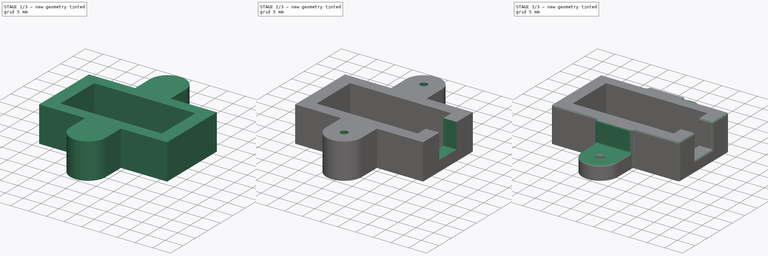
[diagram: build sequence overview — one tinted view per stage of 3, left to right]
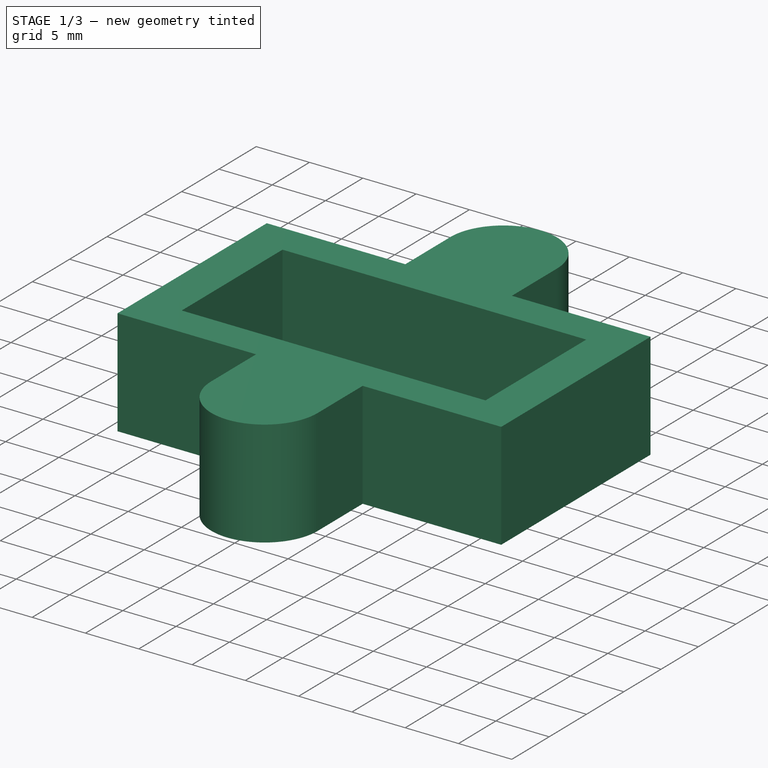
[diagram: stage 1 of 3 — iso view after this stage's code; geometry added in this stage tinted green]
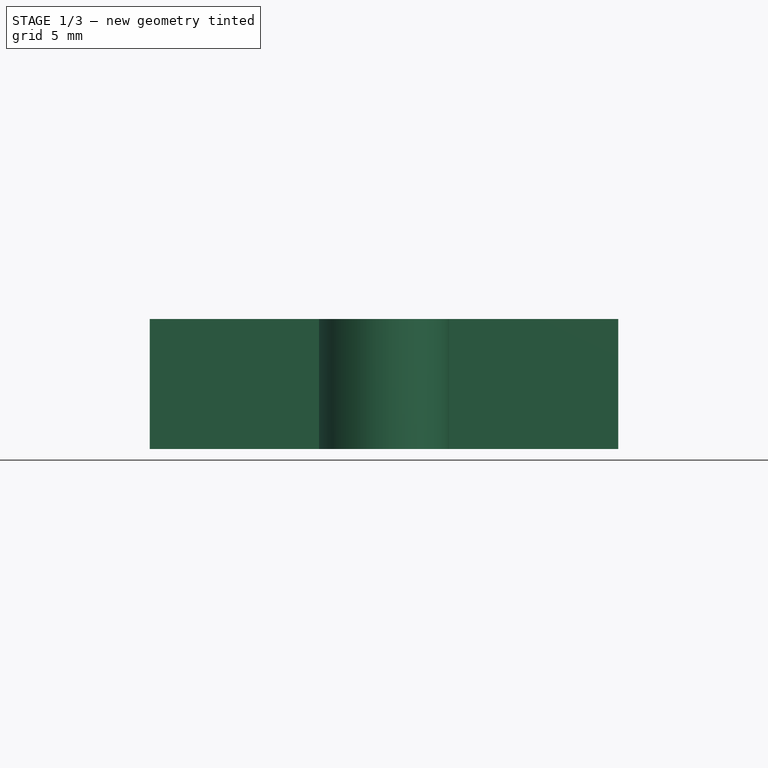
[diagram: stage 1 of 3 — front view after this stage's code; geometry added in this stage tinted green]
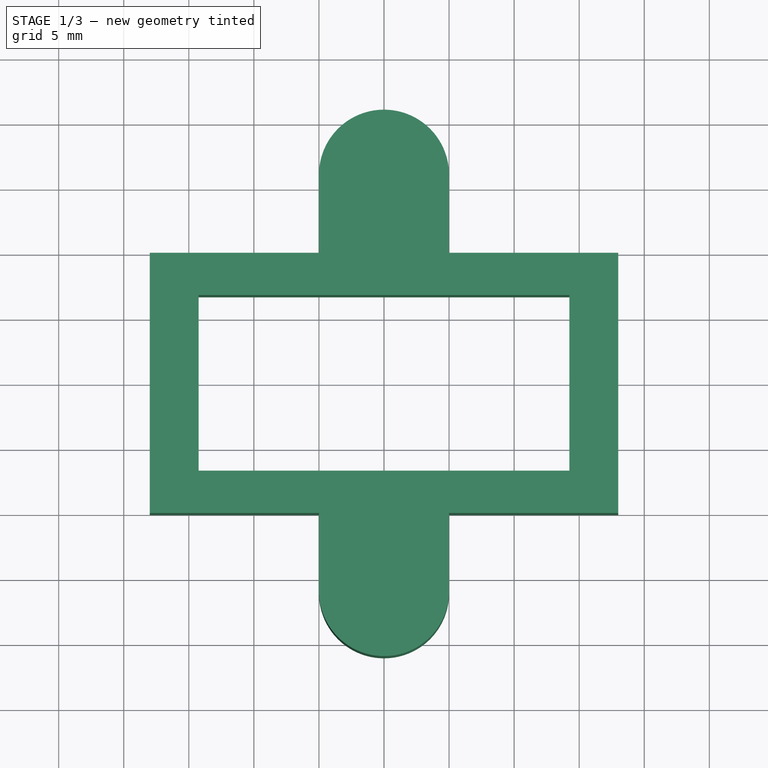
[diagram: stage 1 of 3 — top view after this stage's code; geometry added in this stage tinted green]
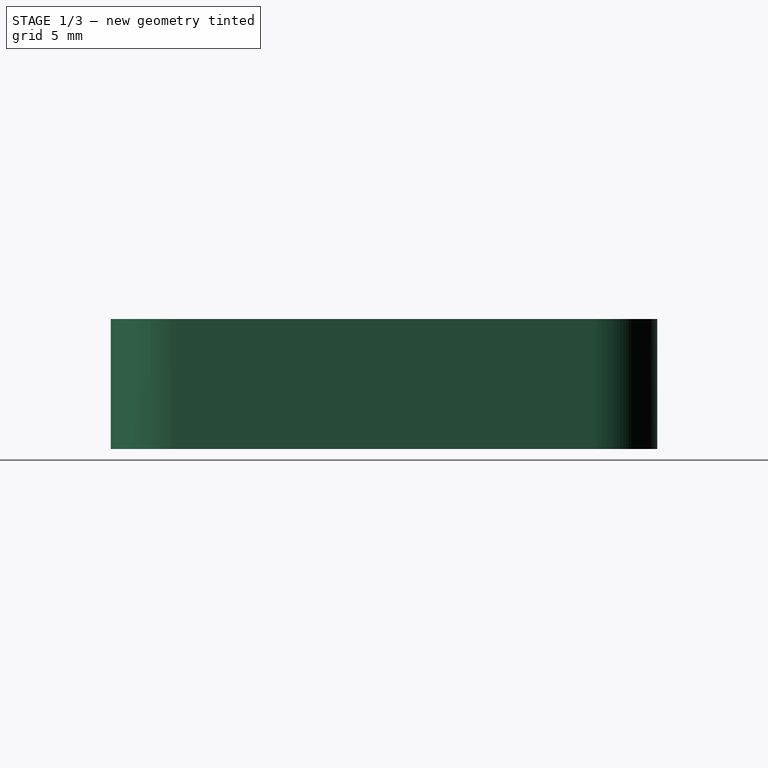
[diagram: stage 1 of 3 — right view after this stage's code; geometry added in this stage tinted green]
FCSTD DOCUMENT  (FreeCAD 0.17R13541 (Git))
Label: Soporte servo 13 x 28 rev1
License: CreativeCommons Attribution
LicenseURL: http://creativecommons.org/licenses/by/4.0/
objects: Part::Feature×7, Sketcher::SketchObject×5, PartDesign::Pocket×4, App::DocumentObjectGroup×2, PartDesign::Pad×1, PartDesign::Body×1, Part::Fillet×1
note: 24 computed .brp shape members not serialized (recipe doc carries the construction recipe); baked Part::Feature solids carry a one-line shape summary decoded from their .brp

FEATURE [Sketcher::SketchObject] Sketch  label="Sketch base soporte servo"
  MapMode = 5
  Support = -> [XY_Plane]
  sketch-geometry (12):
    g0: LineSegment StartX=-18 StartY=-10 StartZ=0 EndX=-18 EndY=10 EndZ=0
    g1: LineSegment StartX=-18 StartY=10 StartZ=0 EndX=-5 EndY=10 EndZ=0
    g2: LineSegment StartX=-5 StartY=10 StartZ=0 EndX=-5 EndY=16 EndZ=0
    g3: LineSegment StartX=5 StartY=16 StartZ=0 EndX=5 EndY=10 EndZ=0
    g4: LineSegment StartX=5 StartY=10 StartZ=0 EndX=18 EndY=10 EndZ=0
    g5: LineSegment StartX=18 StartY=10 StartZ=0 EndX=18 EndY=-10 EndZ=0
    g6: LineSegment StartX=18 StartY=-10 StartZ=0 EndX=5 EndY=-10 EndZ=0
    g7: LineSegment StartX=5 StartY=-10 StartZ=0 EndX=5 EndY=-16 EndZ=0
    g8: LineSegment StartX=-5 StartY=-16 StartZ=0 EndX=-5 EndY=-10 EndZ=0
    g9: LineSegment StartX=-5 StartY=-10 StartZ=0 EndX=-18 EndY=-10 EndZ=0
    g10: ArcOfCircle CenterX=0 CenterY=16 CenterZ=0 NormalX=0 NormalY=0 NormalZ=1 AngleXU=0 Radius=5 StartAngle=0 EndAngle=3.14159
    g11: ArcOfCircle CenterX=-6e-12 CenterY=-16 CenterZ=0 NormalX=0 NormalY=0 NormalZ=1 AngleXU=0 Radius=5 StartAngle=3.14159 EndAngle=6.28319
  constraints (37):
    c: Vertical(g0)
    c: Coincident(g0,g1)
    c: Horizontal(g1)
    c: Coincident(g1,g2)
    c: Vertical(g2)
    c: Vertical(g3)
    c: Coincident(g3,g4)
    c: Horizontal(g4)
    c: Coincident(g4,g5)
    c: Vertical(g5)
    c: Coincident(g5,g6)
    c: Horizontal(g6)
    c: Coincident(g6,g7)
    c: Vertical(g7)
    c: Vertical(g8)
    c: Coincident(g8,g9)
    c: Horizontal(g9)
    c: Coincident(g0,g9)
    c: Coincident(g10,g2)
    c: DistanceY(g0,g0) = 20
    c: DistanceY(g5,g5) = 20
    c: DistanceX(g1,g1) = 13
    c: DistanceX(g6,g6) = 13
    c: Distance(g8,g6) = 10
    c: DistanceY(g2,g2) = 6
    c: Coincident(g3,g10)
    c: DistanceY(g3,g3) = 6
    c: Radius(g10) = 5
    c: Symmetric(g1,g3,g-2)
    c: Symmetric(g1,g8,g-1)
    c: Symmetric(g8,g2,g-1)
    c: Coincident(g7,g11)
    c: Radius(g11) = 5
    c: Symmetric(g8,g6,g-2)
    c: DistanceY(g7,g7) = 6
    c: Symmetric(g11,g10,g-1)
    c: Distance(g10,g11) = 32
FEATURE [PartDesign::Pad] Pad  label="Pad base principal soporte servo"
  Length = 10
  Length2 = 100
  Profile = -> Sketch
  Type = 0
FEATURE [Sketcher::SketchObject] Sketch001  label="Sketch hueco servo 13 x 28"
  MapMode = 5
  Placement = pos=(0,0,10) rot=(0,0,1;0rad)
  Support = -> [Pad]
  sketch-geometry (4):
    g0: LineSegment StartX=-14.25 StartY=6.75 StartZ=0 EndX=14.25 EndY=6.75 EndZ=0
    g1: LineSegment StartX=14.25 StartY=6.75 StartZ=0 EndX=14.25 EndY=-6.75 EndZ=0
    g2: LineSegment StartX=14.25 StartY=-6.75 StartZ=0 EndX=-14.25 EndY=-6.75 EndZ=0
    g3: LineSegment StartX=-14.25 StartY=-6.75 StartZ=0 EndX=-14.25 EndY=6.75 EndZ=0
  constraints (12):
    c: Coincident(g0,g1)
    c: Coincident(g1,g2)
    c: Coincident(g2,g3)
    c: Coincident(g3,g0)
    c: Horizontal(g0)
    c: Horizontal(g2)
    c: Vertical(g1)
    c: Vertical(g3)
    c: DistanceX(g0,g0) = 28.5
    c: DistanceY(g3,g3) = 13.5
    c: Symmetric(g0,g0,g-2)
    c: Symmetric(g0,g2,g-1)
FEATURE [PartDesign::Pocket] Pocket  label="Rebaje alojamiento servo"
  BaseFeature = -> Pad
  Length = 5
  Length2 = 100
  Profile = -> Sketch001
  Type = 1
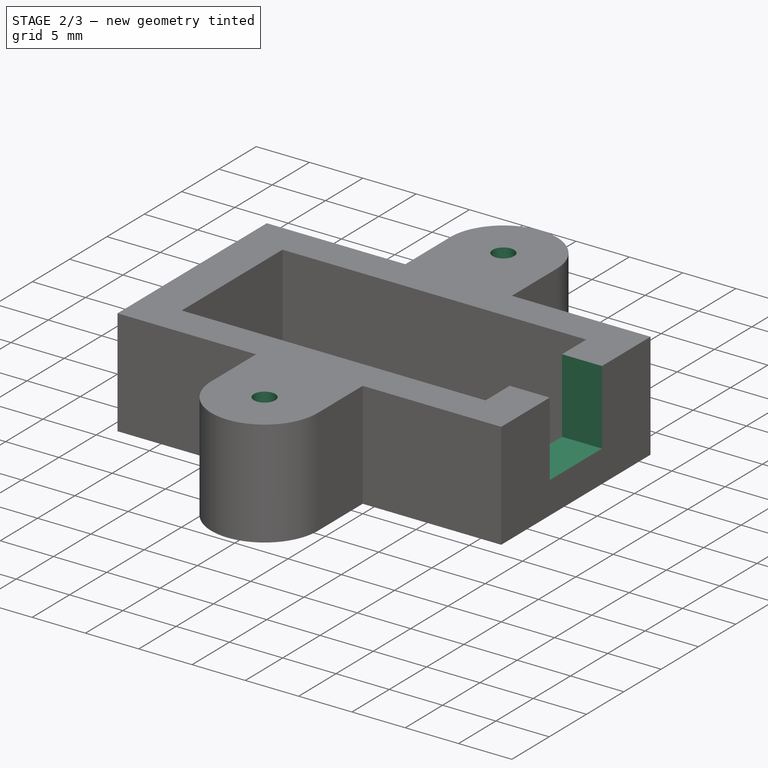
[diagram: stage 2 of 3 — iso view after this stage's code; geometry added in this stage tinted green]
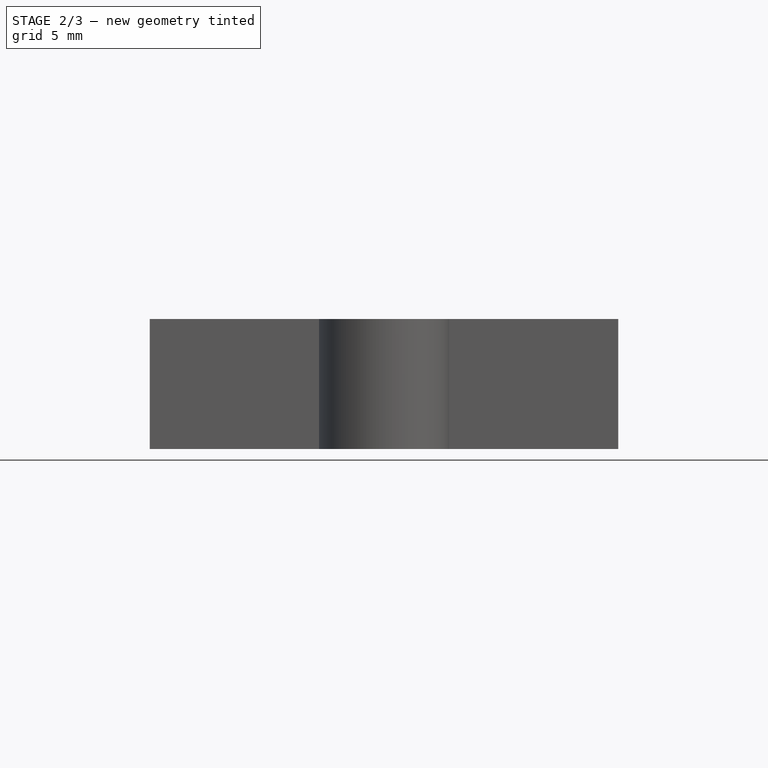
[diagram: stage 2 of 3 — front view after this stage's code; geometry added in this stage tinted green]
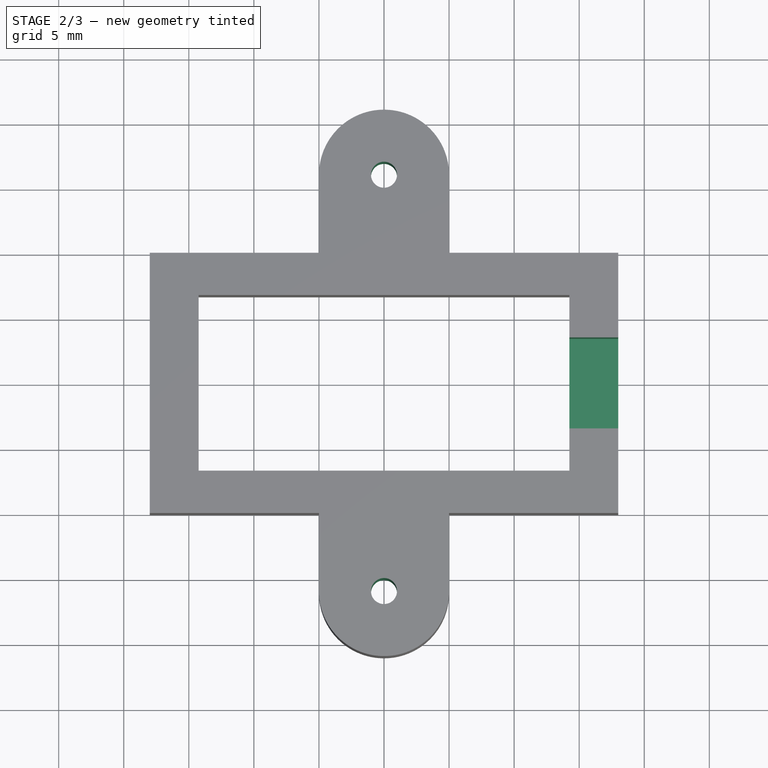
[diagram: stage 2 of 3 — top view after this stage's code; geometry added in this stage tinted green]
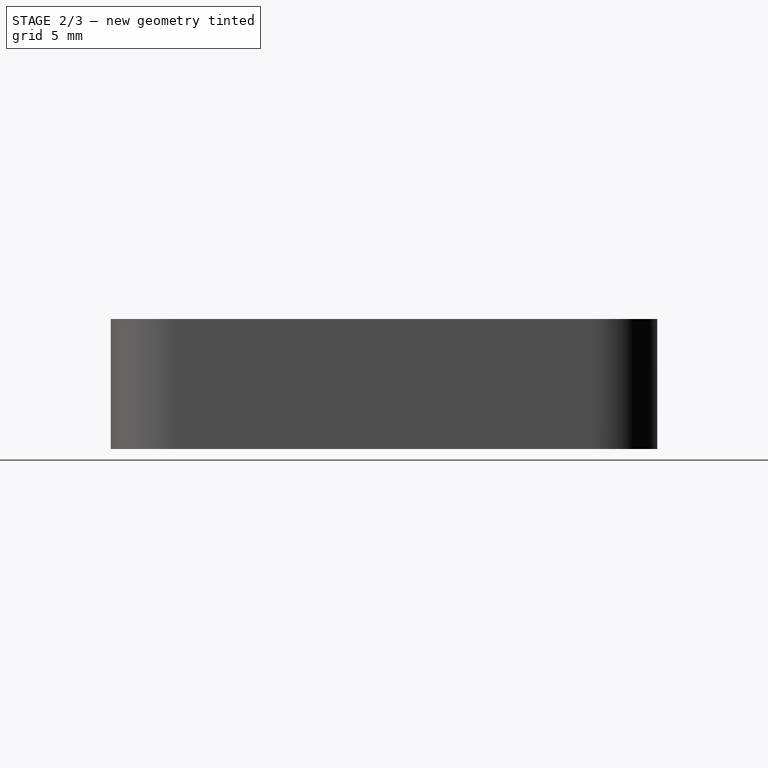
[diagram: stage 2 of 3 — right view after this stage's code; geometry added in this stage tinted green]
FEATURE [Sketcher::SketchObject] Sketch002  label="Sketch paso cable"
  ExternalGeometry = -> [Pocket]
  MapMode = 5
  Placement = pos=(0,0,10) rot=(0,0,1;0rad)
  Support = -> [Pocket]
  sketch-geometry (4):
    g0: LineSegment StartX=14.25 StartY=3.5 StartZ=0 EndX=18 EndY=3.5 EndZ=0
    g1: LineSegment StartX=18 StartY=3.5 StartZ=0 EndX=18 EndY=-3.5 EndZ=0
    g2: LineSegment StartX=18 StartY=-3.5 StartZ=0 EndX=14.25 EndY=-3.5 EndZ=0
    g3: LineSegment StartX=14.25 StartY=-3.5 StartZ=0 EndX=14.25 EndY=3.5 EndZ=0
  constraints (12):
    c: Coincident(g0,g1)
    c: Coincident(g1,g2)
    c: Coincident(g2,g3)
    c: Coincident(g3,g0)
    c: Horizontal(g0)
    c: Horizontal(g2)
    c: Vertical(g1)
    c: Vertical(g3)
    c: Symmetric(g0,g1,g-1)
    c: DistanceY(g3,g3) = 7
    c: PointOnObject(g0,g-3)
    c: PointOnObject(g0,g-4)
FEATURE [PartDesign::Pocket] Pocket001  label="Rebaje paso de cables"
  BaseFeature = -> Pocket
  Length = 7
  Length2 = 100
  Profile = -> Sketch002
  Type = 0
FEATURE [Sketcher::SketchObject] Sketch003  label="sketch taladros"
  ExternalGeometry = -> [Pocket001]
  MapMode = 5
  Placement = pos=(0,0,10) rot=(0,0,1;0rad)
  Support = -> [Pocket001]
  sketch-geometry (2):
    g0: Circle CenterX=0 CenterY=16 CenterZ=0 NormalX=0 NormalY=0 NormalZ=1 AngleXU=0 Radius=1
    g1: Circle CenterX=0 CenterY=-16 CenterZ=0 NormalX=0 NormalY=0 NormalZ=1 AngleXU=0 Radius=1
  constraints (6):
    c: PointOnObject(g0,g-2)
    c: PointOnObject(g1,g-2)
    c: Coincident(g0,g-3)
    c: Coincident(g1,g-4)
    c: Radius(g1) = 1
    c: Radius(g0) = 1
FEATURE [PartDesign::Pocket] Pocket002  label="Hueco taladros"
  BaseFeature = -> Pocket001
  Length = 5
  Length2 = 100
  Profile = -> Sketch003
  Type = 1
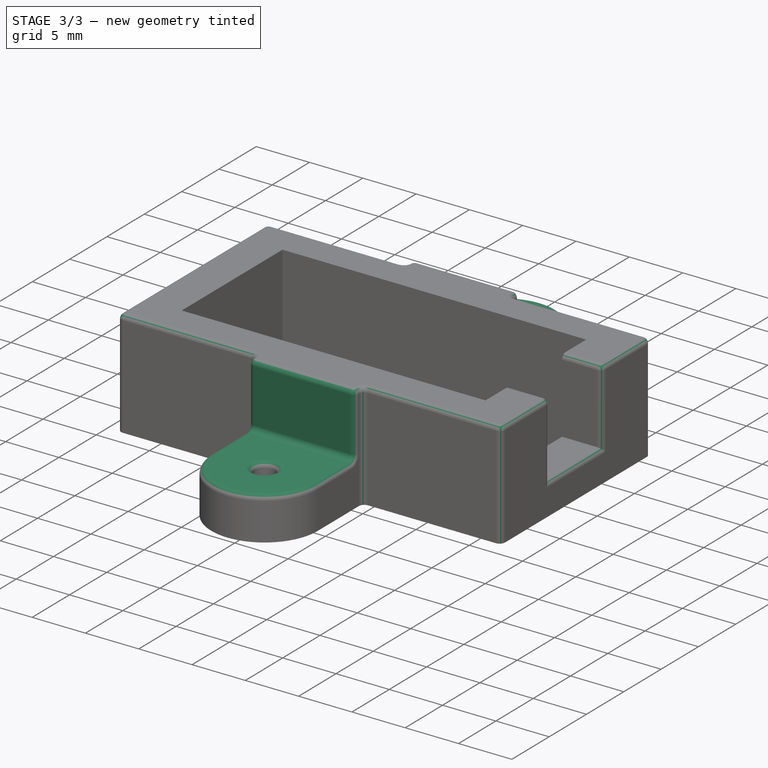
[diagram: stage 3 of 3 — iso view after this stage's code; geometry added in this stage tinted green]
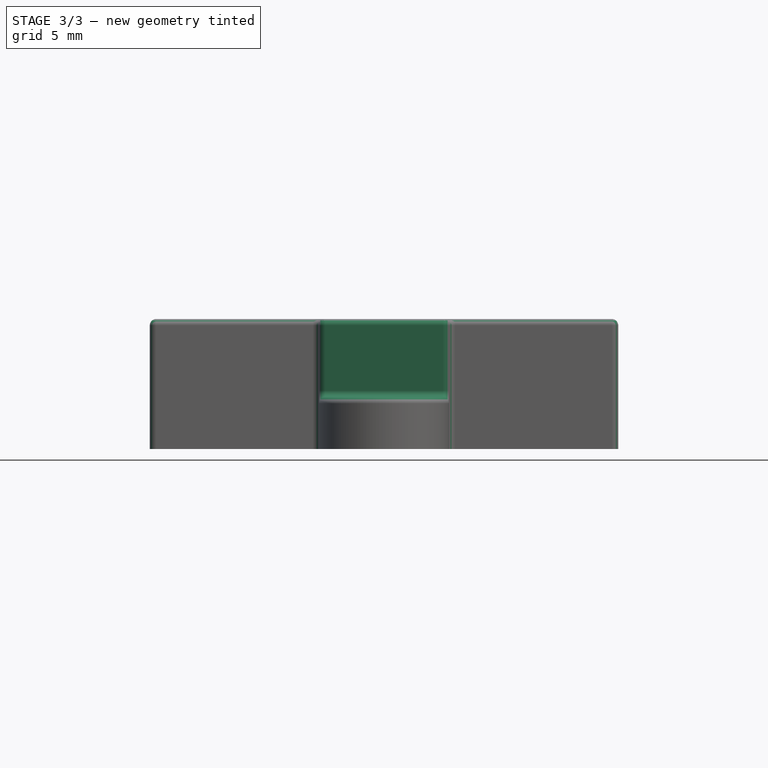
[diagram: stage 3 of 3 — front view after this stage's code; geometry added in this stage tinted green]
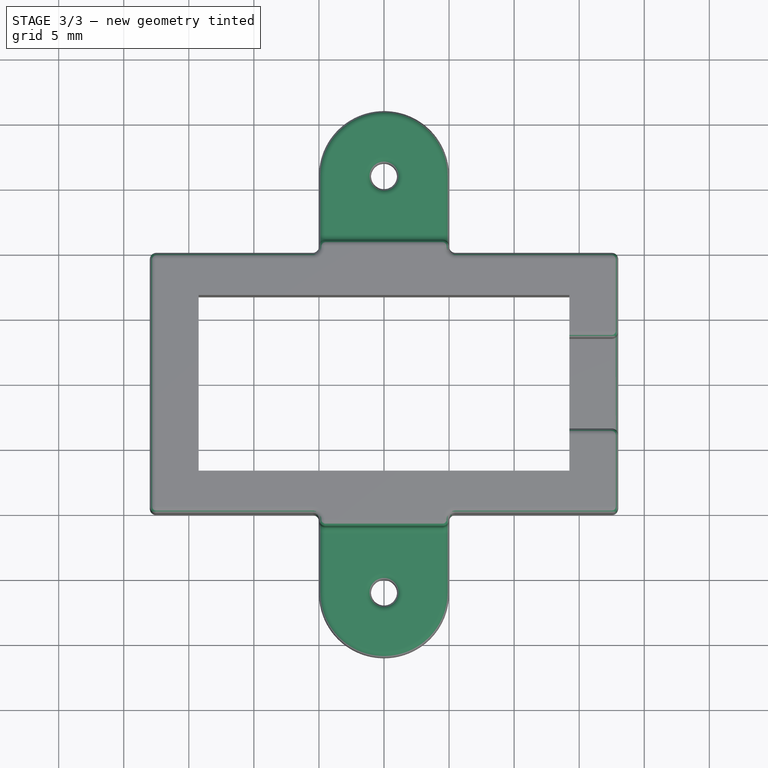
[diagram: stage 3 of 3 — top view after this stage's code; geometry added in this stage tinted green]
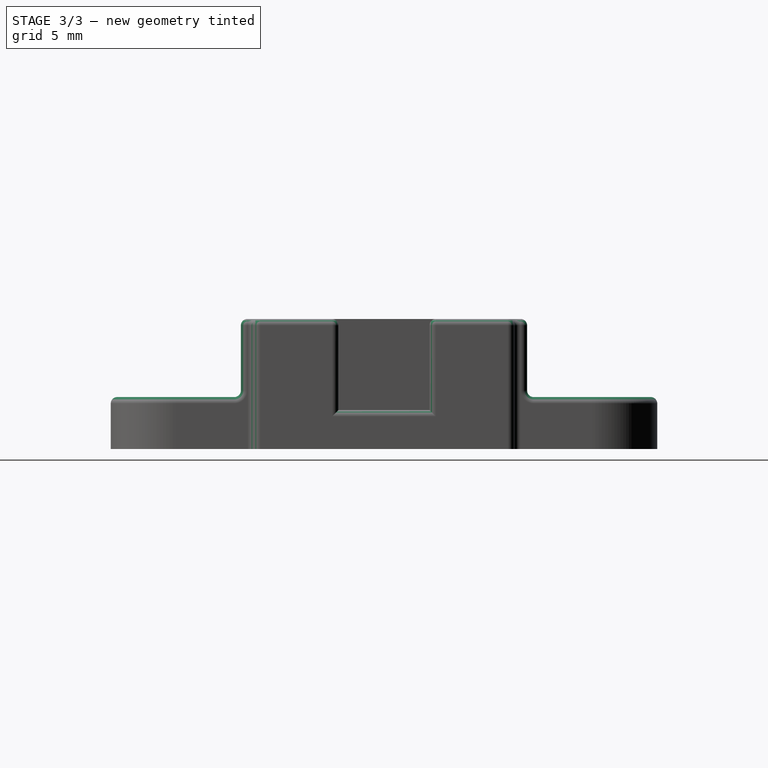
[diagram: stage 3 of 3 — right view after this stage's code; geometry added in this stage tinted green]
FEATURE [Sketcher::SketchObject] Sketch004  label="Sketch rebaje zona taladros"
  ExternalGeometry = -> [Pocket002]
  MapMode = 5
  Placement = pos=(0,0,10) rot=(0,0,1;0rad)
  Support = -> [Pocket002]
  sketch-geometry (8):
    g0: LineSegment StartX=-5 StartY=-16 StartZ=0 EndX=-5 EndY=-11 EndZ=0
    g1: LineSegment StartX=-5 StartY=-11 StartZ=0 EndX=5 EndY=-11 EndZ=0
    g2: LineSegment StartX=5 StartY=-11 StartZ=0 EndX=5 EndY=-16 EndZ=0
    g3: ArcOfCircle CenterX=-6e-12 CenterY=-16 CenterZ=0 NormalX=0 NormalY=0 NormalZ=1 AngleXU=0 Radius=5 StartAngle=3.14159 EndAngle=6.28319
    g4: ArcOfCircle CenterX=0 CenterY=16 CenterZ=0 NormalX=0 NormalY=0 NormalZ=1 AngleXU=0 Radius=5 StartAngle=0 EndAngle=3.14159
    g5: LineSegment StartX=-5 StartY=16 StartZ=0 EndX=-5 EndY=11 EndZ=0
    g6: LineSegment StartX=-5 StartY=11 StartZ=0 EndX=5 EndY=11 EndZ=0
    g7: LineSegment StartX=5 StartY=11 StartZ=0 EndX=5 EndY=16 EndZ=0
  constraints (21):
    c: Vertical(g0)
    c: Coincident(g0,g1)
    c: Horizontal(g1)
    c: Coincident(g1,g2)
    c: Vertical(g2)
    c: Coincident(g3,g0)
    c: Coincident(g3,g2)
    c: Coincident(g3,g-8)
    c: Coincident(g2,g-8)
    c: Coincident(g0,g-8)
    c: DistanceY(g0,g0) = 5
    c: Coincident(g4,g-5)
    c: Coincident(g4,g-5)
    c: Coincident(g4,g-5)
    c: Tangent(g4,g5) = -1.5708
    c: Coincident(g5,g6)
    c: PointOnObject(g6,g-4)
    c: Horizontal(g6)
    c: Coincident(g6,g7)
    c: Coincident(g7,g4)
    c: DistanceY(g5,g5) = 5
FEATURE [PartDesign::Pocket] Pocket003  label="Rebaje de taladros"
  BaseFeature = -> Pocket002
  Length = 6
  Length2 = 100
  Profile = -> Sketch004
  Type = 0
FEATURE [PartDesign::Body] Body
  Group = -> [Sketch,Pad,Sketch001,Pocket,Sketch002,Pocket001,Sketch003,Pocket002,Sketch004,Pocket003]
  Origin = -> Origin
  Tip = -> Pocket003
FEATURE [Part::Fillet] Fillet  label="Master Soporte servo vertical 13 x 28"
  Base = -> Pocket003
  Edges = 40 edges: [Edge2 r=0.49,Edge3 r=0.5,Edge4 r=0.5,Edge5 r=0.5,Edge24 r=0.5,Edge25 r=0.5,Edge26 r=0.5,Edge27 r=0.5,Edge28 r=0.5,Edge29 r=0.5,Edge30 r=0.5,Edge36 r=0.5,Edge37 r=0.5,Edge38 r=0.5,Edge39 r=0.5,Edge40 r=0.5,Edge41 r=0.5,Edge42 r=0.5,Edge43 r=0.5,Edge44 r=0.5,Edge45 r=0.5,Edge46 r=0.5,Edge47 r=0.5,Edge48 r=0.5,Edge50 r=0.49,Edge51 r=0.5,Edge52 r=0.5,Edge53 r=0.49,Edge54 r=0.5,Edge55 r=0.5,Edge56 r=0.5,Edge57 r=0.5,Edge59 r=0.5,Edge60 r=0.5,Edge61 r=0.49,Edge62 r=0.5,Edge64 r=0.5,Edge65 r=0.5,Edge66 r=0.5,Edge78 r=0.5]
FEATURE [Part::Feature] Cylinder004002  label="cable naranja"
  Placement = pos=(29,1,5.75) rot=(0.57735,-0.57735,-0.57735;2.0944rad)
  shape: bbox 10 x 1 x 1 mm, 3 faces (baked)
FEATURE [Part::Feature] Cylinder004001  label="cable rojo"
  Placement = pos=(29,0,5.75) rot=(0.57735,-0.57735,-0.57735;2.0944rad)
  shape: bbox 10 x 1 x 1 mm, 3 faces (baked)
FEATURE [Part::Feature] Cylinder004004  label="cable marron"
  Placement = pos=(29,-1,5.75) rot=(0.57735,-0.57735,-0.57735;2.0944rad)
  shape: bbox 10 x 1 x 1 mm, 3 faces (baked)
FEATURE [Part::Feature] Fillet001  label="Soporte servo vertical 13 x 28"
  shape: bbox 36 x 42.82 x 10 mm, 85 faces (baked)
FEATURE [App::DocumentObjectGroup] Grupo  label="Construccion soporte"
  Group = -> [Body,Fillet]
FEATURE [Part::Feature] Revolution001  label="Chincheta1"
  Placement = pos=(0,16,-8) rot=(1,0,0;1.5708rad)
  shape: bbox 8 x 8 x 24.05 mm, 7 faces (baked)
FEATURE [Part::Feature] Revolution002  label="Chincheta2"
  Placement = pos=(0,-16,-8) rot=(1,0,0;1.5708rad)
  shape: bbox 8 x 8 x 24.05 mm, 7 faces (baked)
FEATURE [Part::Feature] Cut001  label="Servo HD1160A"
  Placement = pos=(0,0,0) rot=(0,0,-1;1.5708rad)
  shape: bbox 40 x 13 x 34 mm, 29 faces (baked)
FEATURE [App::DocumentObjectGroup] Grupo001  label="Piezas auxiliares"
  Group = -> [Cut001,Cylinder004002,Cylinder004001,Cylinder004004,Revolution001,Revolution002]
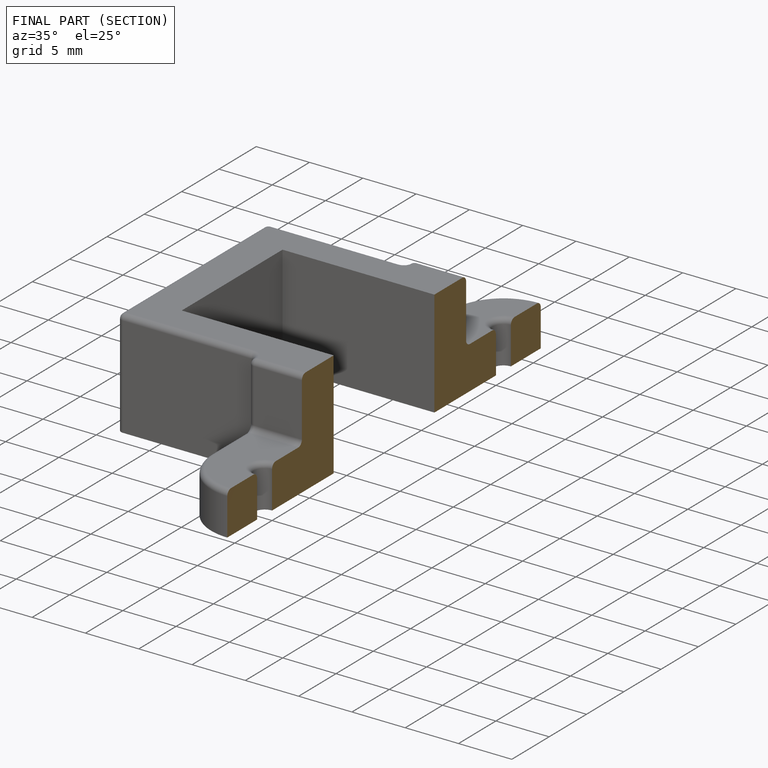
[diagram: finished part — half-section view (interior)]
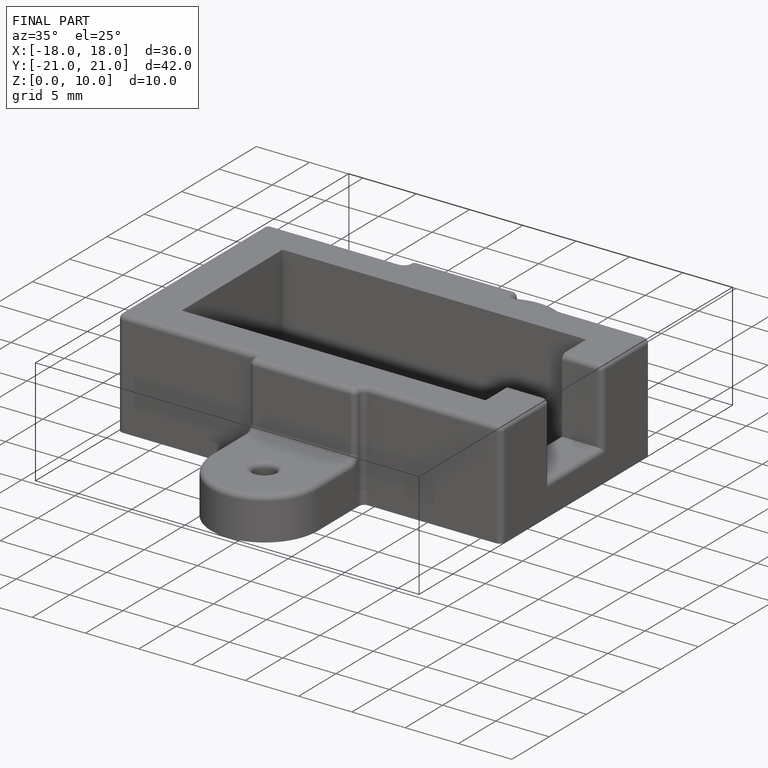
[diagram: finished part — iso view with bounding-box wireframe]
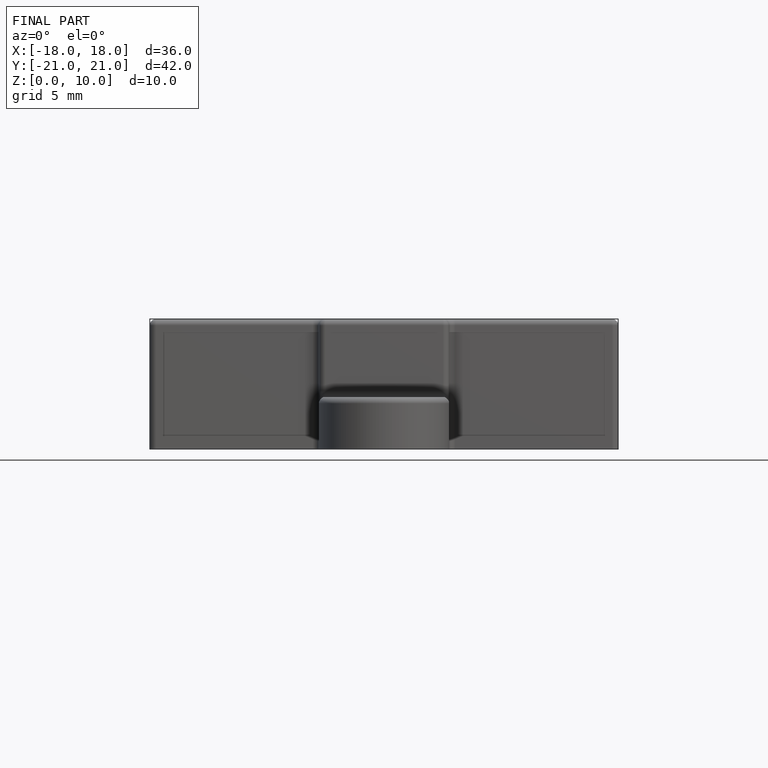
[diagram: finished part — front view with bounding-box wireframe]
